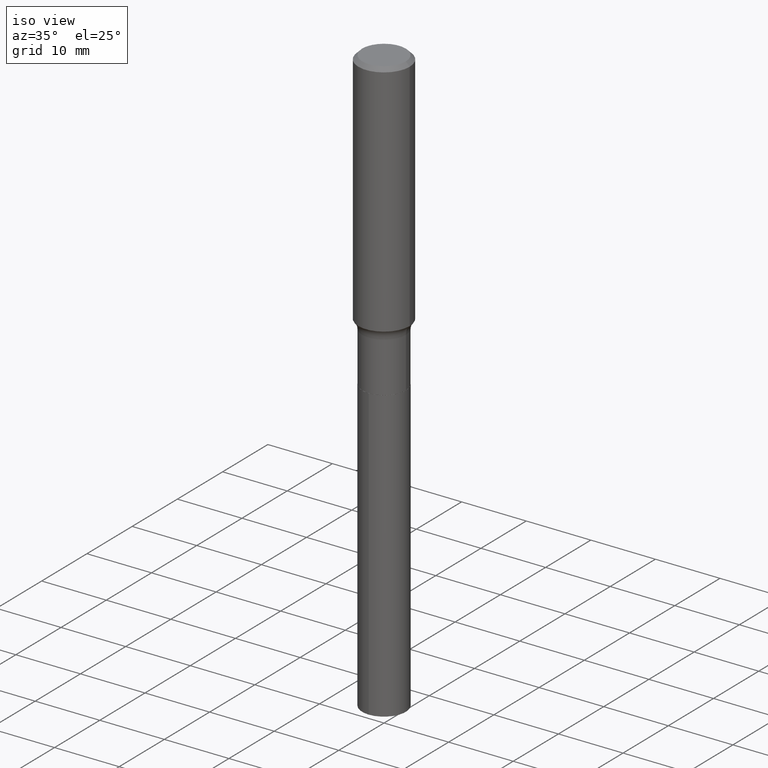
[diagram: clean part render]
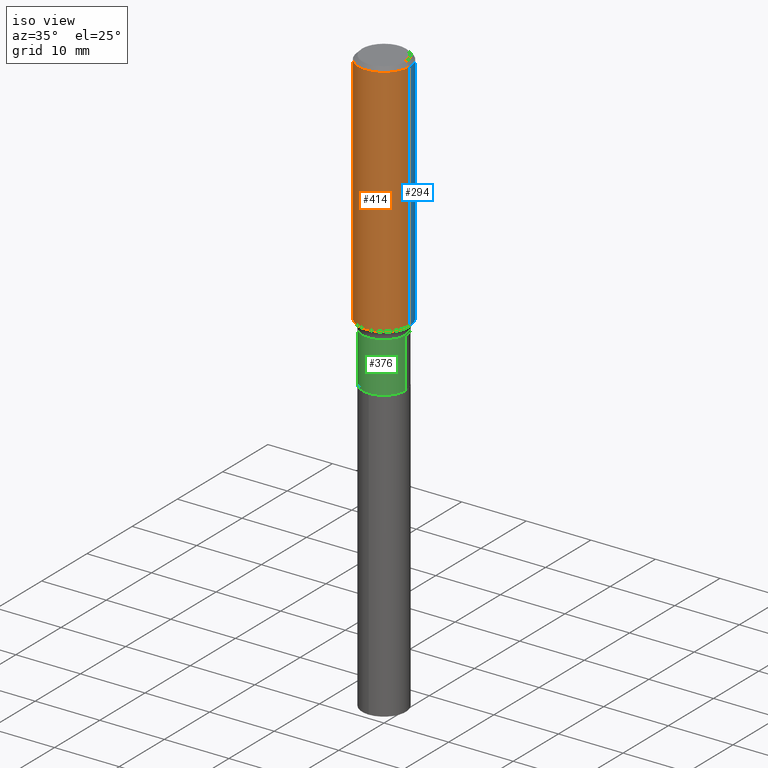
[diagram: same view with three faces highlighted in distinct colors, each labeled with its STEP entity id]
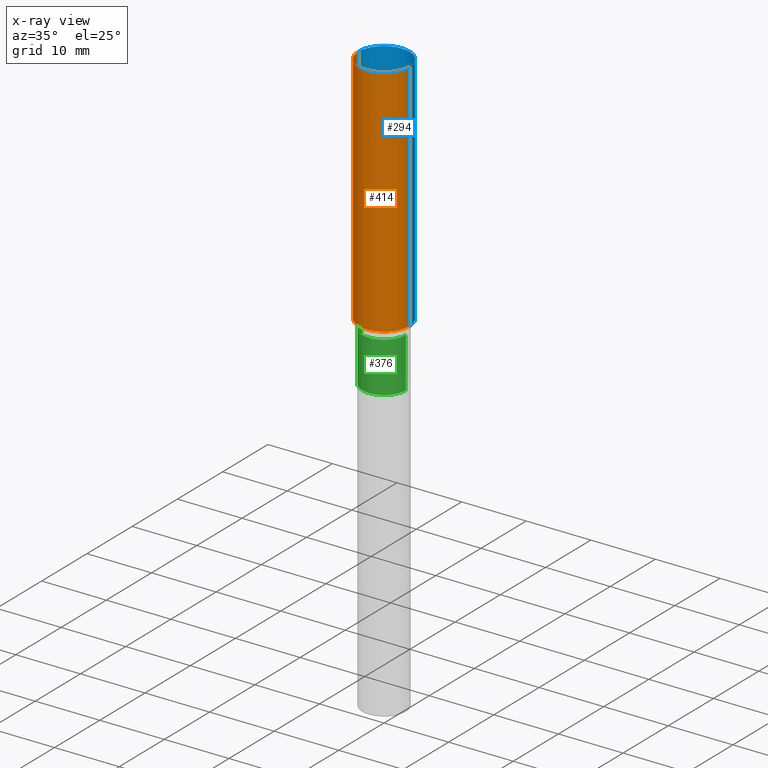
[diagram: x-ray of the same camera — body ghosted, the three highlighted faces saturated]
A machine part, iso view with three faces highlighted in distinct colors.
The next image is the same camera in x-ray (body ghosted, the three faces saturated) — at least one of them is partly hidden behind the body in this view.
Their STEP definitions:

[orange] entity #414 — the highlighted cylindrical surface (edge-blend (fillet) strip) has radius 3.9688 mm, axis along (-0, 0, 1).
#9 = DIRECTION ( 'NONE',  ( 1.000000000000000000, -6.982962677686266711E-15, 4.876176775795935232E-29 ) ) ;
#40 = DIRECTION ( 'NONE',  ( -2.445468806185136597E-29, 3.491481338843145583E-15, 1.000000000000000000 ) ) ;
#45 = LINE ( 'NONE', #352, #281 ) ;
#67 = VERTEX_POINT ( 'NONE', #185 ) ;
#77 = VECTOR ( 'NONE', #489, 39.37007874015748143 ) ;
#81 = VERTEX_POINT ( 'NONE', #342 ) ;
#88 = EDGE_LOOP ( 'NONE', ( #428, #491, #114, #156 ) ) ;
#101 = EDGE_CURVE ( 'NONE', #81, #67, #230, .T. ) ;
#114 = ORIENTED_EDGE ( 'NONE', *, *, #143, .T. ) ;
#120 = DIRECTION ( 'NONE',  ( 1.000000000000000000, -6.982962677686266711E-15, 0.000000000000000000 ) ) ;
#121 = FACE_OUTER_BOUND ( 'NONE', #88, .T. ) ;
#143 = EDGE_CURVE ( 'NONE', #475, #67, #312, .T. ) ;
#156 = ORIENTED_EDGE ( 'NONE', *, *, #101, .F. ) ;
#158 = DIRECTION ( 'NONE',  ( -2.445468806185136597E-29, 3.491481338843145583E-15, 1.000000000000000000 ) ) ;
#168 = AXIS2_PLACEMENT_3D ( 'NONE', #466, #276, #9 ) ;
#185 = CARTESIAN_POINT ( 'NONE',  ( 0.1562500000000000000, -1.172919512267615999E-15, -0.02343750000000014225 ) ) ;
#188 = CARTESIAN_POINT ( 'NONE',  ( 5.731567514496448931E-31, -8.183159387913672688E-17, -0.02343750000000014225 ) ) ;
#200 = CARTESIAN_POINT ( 'NONE',  ( -0.1562500000000001665, -3.957467609853819764E-15, -1.451444284722451794 ) ) ;
#230 = CIRCLE ( 'NONE', #326, 0.1562500000000000000 ) ;
#244 = CIRCLE ( 'NONE', #349, 0.1562500000000001388 ) ;
#276 = DIRECTION ( 'NONE',  ( -2.445468806185136597E-29, 3.491481338843145583E-15, 1.000000000000000000 ) ) ;
#281 = VECTOR ( 'NONE', #318, 39.37007874015748143 ) ;
#293 = VERTEX_POINT ( 'NONE', #200 ) ;
#311 = EDGE_CURVE ( 'NONE', #293, #475, #244, .T. ) ;
#312 = LINE ( 'NONE', #459, #77 ) ;
#316 = CARTESIAN_POINT ( 'NONE',  ( 3.549461722204453931E-29, -5.067690634478977882E-15, -1.451444284722451794 ) ) ;
#318 = DIRECTION ( 'NONE',  ( -2.445468806185136877E-29, 3.491481338843145188E-15, 1.000000000000000000 ) ) ;
#326 = AXIS2_PLACEMENT_3D ( 'NONE', #188, #158, #120 ) ;
#342 = CARTESIAN_POINT ( 'NONE',  ( -0.1562500000000000000, -1.464538089553900024E-15, -0.02343750000000014225 ) ) ;
#349 = AXIS2_PLACEMENT_3D ( 'NONE', #316, #40, #460 ) ;
#352 = CARTESIAN_POINT ( 'NONE',  ( -0.1562500000000000833, 1.110223024625157132E-15, -7.685836078523293962E-30 ) ) ;
#398 = EDGE_CURVE ( 'NONE', #293, #81, #45, .T. ) ;
#414 = ADVANCED_FACE ( 'NONE', ( #121 ), #420, .T. ) ;
#420 = CYLINDRICAL_SURFACE ( 'NONE', #168, 0.1562500000000000833 ) ;
#428 = ORIENTED_EDGE ( 'NONE', *, *, #398, .F. ) ;
#433 = CARTESIAN_POINT ( 'NONE',  ( 0.1562500000000001665, -6.158778552867458633E-15, -1.451444284722451794 ) ) ;
#459 = CARTESIAN_POINT ( 'NONE',  ( 0.1562500000000000833, -1.091087918388479765E-15, 7.619026212181153180E-30 ) ) ;
#460 = DIRECTION ( 'NONE',  ( 1.000000000000000000, -6.982962677686269077E-15, 0.000000000000000000 ) ) ;
#466 = CARTESIAN_POINT ( 'NONE',  ( 0.000000000000000000, 0.000000000000000000, 0.000000000000000000 ) ) ;
#475 = VERTEX_POINT ( 'NONE', #433 ) ;
#489 = DIRECTION ( 'NONE',  ( -2.445468806185136877E-29, 3.491481338843145188E-15, 1.000000000000000000 ) ) ;
#491 = ORIENTED_EDGE ( 'NONE', *, *, #311, .T. ) ;

[blue] entity #294 — the highlighted cylindrical surface (edge-blend (fillet) strip) has radius 3.9688 mm, axis along (-0, 0, 1).
#38 = CYLINDRICAL_SURFACE ( 'NONE', #119, 0.1562500000000000833 ) ;
#45 = LINE ( 'NONE', #352, #281 ) ;
#53 = EDGE_CURVE ( 'NONE', #475, #293, #332, .T. ) ;
#59 = CIRCLE ( 'NONE', #479, 0.1562500000000000000 ) ;
#67 = VERTEX_POINT ( 'NONE', #185 ) ;
#77 = VECTOR ( 'NONE', #489, 39.37007874015748143 ) ;
#81 = VERTEX_POINT ( 'NONE', #342 ) ;
#83 = DIRECTION ( 'NONE',  ( 1.000000000000000000, -6.982962677686266711E-15, 4.876176775795935232E-29 ) ) ;
#106 = ORIENTED_EDGE ( 'NONE', *, *, #398, .T. ) ;
#119 = AXIS2_PLACEMENT_3D ( 'NONE', #425, #196, #83 ) ;
#123 = CARTESIAN_POINT ( 'NONE',  ( 5.731567514496448931E-31, -8.183159387913672688E-17, -0.02343750000000014225 ) ) ;
#124 = FACE_OUTER_BOUND ( 'NONE', #336, .T. ) ;
#129 = DIRECTION ( 'NONE',  ( -2.445468806185136597E-29, 3.491481338843145583E-15, 1.000000000000000000 ) ) ;
#143 = EDGE_CURVE ( 'NONE', #475, #67, #312, .T. ) ;
#169 = EDGE_CURVE ( 'NONE', #67, #81, #59, .T. ) ;
#182 = AXIS2_PLACEMENT_3D ( 'NONE', #399, #272, #231 ) ;
#185 = CARTESIAN_POINT ( 'NONE',  ( 0.1562500000000000000, -1.172919512267615999E-15, -0.02343750000000014225 ) ) ;
#196 = DIRECTION ( 'NONE',  ( -2.445468806185136597E-29, 3.491481338843145583E-15, 1.000000000000000000 ) ) ;
#200 = CARTESIAN_POINT ( 'NONE',  ( -0.1562500000000001665, -3.957467609853819764E-15, -1.451444284722451794 ) ) ;
#231 = DIRECTION ( 'NONE',  ( 1.000000000000000000, -6.982962677686269077E-15, 0.000000000000000000 ) ) ;
#272 = DIRECTION ( 'NONE',  ( -2.445468806185136597E-29, 3.491481338843145583E-15, 1.000000000000000000 ) ) ;
#281 = VECTOR ( 'NONE', #318, 39.37007874015748143 ) ;
#293 = VERTEX_POINT ( 'NONE', #200 ) ;
#294 = ADVANCED_FACE ( 'NONE', ( #124 ), #38, .T. ) ;
#312 = LINE ( 'NONE', #459, #77 ) ;
#318 = DIRECTION ( 'NONE',  ( -2.445468806185136877E-29, 3.491481338843145188E-15, 1.000000000000000000 ) ) ;
#332 = CIRCLE ( 'NONE', #182, 0.1562500000000001388 ) ;
#336 = EDGE_LOOP ( 'NONE', ( #374, #106, #402, #440 ) ) ;
#342 = CARTESIAN_POINT ( 'NONE',  ( -0.1562500000000000000, -1.464538089553900024E-15, -0.02343750000000014225 ) ) ;
#352 = CARTESIAN_POINT ( 'NONE',  ( -0.1562500000000000833, 1.110223024625157132E-15, -7.685836078523293962E-30 ) ) ;
#374 = ORIENTED_EDGE ( 'NONE', *, *, #53, .T. ) ;
#398 = EDGE_CURVE ( 'NONE', #293, #81, #45, .T. ) ;
#399 = CARTESIAN_POINT ( 'NONE',  ( 3.549461722204453931E-29, -5.067690634478977882E-15, -1.451444284722451794 ) ) ;
#402 = ORIENTED_EDGE ( 'NONE', *, *, #169, .F. ) ;
#423 = DIRECTION ( 'NONE',  ( 1.000000000000000000, -6.982962677686266711E-15, 0.000000000000000000 ) ) ;
#425 = CARTESIAN_POINT ( 'NONE',  ( 0.000000000000000000, 0.000000000000000000, 0.000000000000000000 ) ) ;
#433 = CARTESIAN_POINT ( 'NONE',  ( 0.1562500000000001665, -6.158778552867458633E-15, -1.451444284722451794 ) ) ;
#440 = ORIENTED_EDGE ( 'NONE', *, *, #143, .F. ) ;
#459 = CARTESIAN_POINT ( 'NONE',  ( 0.1562500000000000833, -1.091087918388479765E-15, 7.619026212181153180E-30 ) ) ;
#475 = VERTEX_POINT ( 'NONE', #433 ) ;
#479 = AXIS2_PLACEMENT_3D ( 'NONE', #123, #129, #423 ) ;
#489 = DIRECTION ( 'NONE',  ( -2.445468806185136877E-29, 3.491481338843145188E-15, 1.000000000000000000 ) ) ;

[green] entity #376 — the highlighted cylindrical surface (edge-blend (fillet) strip) has radius 3.3782 mm, axis along (-0, 0, 1).
#7 = VECTOR ( 'NONE', #278, 39.37007874015748143 ) ;
#8 = CYLINDRICAL_SURFACE ( 'NONE', #378, 0.1329999999999999793 ) ;
#11 = CARTESIAN_POINT ( 'NONE',  ( 0.1329999999999999793, -9.287340361322734252E-16, 6.485315111808593988E-30 ) ) ;
#61 = EDGE_CURVE ( 'NONE', #179, #308, #473, .T. ) ;
#70 = DIRECTION ( 'NONE',  ( -2.445468806185136877E-29, 3.491481338843145188E-15, 1.000000000000000000 ) ) ;
#78 = CARTESIAN_POINT ( 'NONE',  ( -0.1329999999999999793, 9.450218385609331005E-16, -6.542183670039024169E-30 ) ) ;
#79 = EDGE_CURVE ( 'NONE', #179, #84, #224, .T. ) ;
#84 = VERTEX_POINT ( 'NONE', #310 ) ;
#93 = CARTESIAN_POINT ( 'NONE',  ( 0.1329999999999999793, -7.256694814651591602E-15, -1.812400000000000233 ) ) ;
#94 = VERTEX_POINT ( 'NONE', #303 ) ;
#110 = ORIENTED_EDGE ( 'NONE', *, *, #444, .F. ) ;
#159 = DIRECTION ( 'NONE',  ( -2.445468806185136597E-29, 3.491481338843145583E-15, 1.000000000000000000 ) ) ;
#164 = CARTESIAN_POINT ( 'NONE',  ( 0.000000000000000000, 0.000000000000000000, 0.000000000000000000 ) ) ;
#179 = VERTEX_POINT ( 'NONE', #356 ) ;
#205 = DIRECTION ( 'NONE',  ( 1.000000000000000000, -6.982962677686269077E-15, 0.000000000000000000 ) ) ;
#221 = ORIENTED_EDGE ( 'NONE', *, *, #345, .T. ) ;
#224 = LINE ( 'NONE', #78, #325 ) ;
#229 = DIRECTION ( 'NONE',  ( 1.000000000000000000, -6.982962677686269077E-15, 0.000000000000000000 ) ) ;
#248 = DIRECTION ( 'NONE',  ( -2.445468806185136597E-29, 3.491481338843145583E-15, 1.000000000000000000 ) ) ;
#261 = ORIENTED_EDGE ( 'NONE', *, *, #79, .F. ) ;
#271 = CARTESIAN_POINT ( 'NONE',  ( 4.432167664329942418E-29, -6.327960778519318572E-15, -1.812400000000000233 ) ) ;
#278 = DIRECTION ( 'NONE',  ( -2.445468806185136877E-29, 3.491481338843145188E-15, 1.000000000000000000 ) ) ;
#279 = DIRECTION ( 'NONE',  ( 1.000000000000000000, -6.982962677686267499E-15, 4.876176775795936353E-29 ) ) ;
#288 = CIRCLE ( 'NONE', #441, 0.1329999999999999793 ) ;
#303 = CARTESIAN_POINT ( 'NONE',  ( 0.1329999999999999793, -6.190396413768894624E-15, -1.507000000000000339 ) ) ;
#308 = VERTEX_POINT ( 'NONE', #93 ) ;
#310 = CARTESIAN_POINT ( 'NONE',  ( -0.1329999999999999793, -4.849789739517036785E-15, -1.507000000000000339 ) ) ;
#325 = VECTOR ( 'NONE', #70, 39.37007874015748143 ) ;
#345 = EDGE_CURVE ( 'NONE', #308, #94, #431, .T. ) ;
#356 = CARTESIAN_POINT ( 'NONE',  ( -0.1329999999999999793, -4.849789739517036785E-15, -1.812400000000000233 ) ) ;
#376 = ADVANCED_FACE ( 'NONE', ( #392 ), #8, .T. ) ;
#378 = AXIS2_PLACEMENT_3D ( 'NONE', #164, #159, #279 ) ;
#392 = FACE_OUTER_BOUND ( 'NONE', #411, .T. ) ;
#404 = ORIENTED_EDGE ( 'NONE', *, *, #61, .T. ) ;
#411 = EDGE_LOOP ( 'NONE', ( #261, #404, #221, #110 ) ) ;
#427 = CARTESIAN_POINT ( 'NONE',  ( 3.685321490921001874E-29, -5.261662377636621593E-15, -1.507000000000000339 ) ) ;
#431 = LINE ( 'NONE', #11, #7 ) ;
#441 = AXIS2_PLACEMENT_3D ( 'NONE', #427, #248, #205 ) ;
#444 = EDGE_CURVE ( 'NONE', #84, #94, #288, .T. ) ;
#472 = AXIS2_PLACEMENT_3D ( 'NONE', #271, #485, #229 ) ;
#473 = CIRCLE ( 'NONE', #472, 0.1329999999999999793 ) ;
#485 = DIRECTION ( 'NONE',  ( -2.445468806185136597E-29, 3.491481338843145583E-15, 1.000000000000000000 ) ) ;